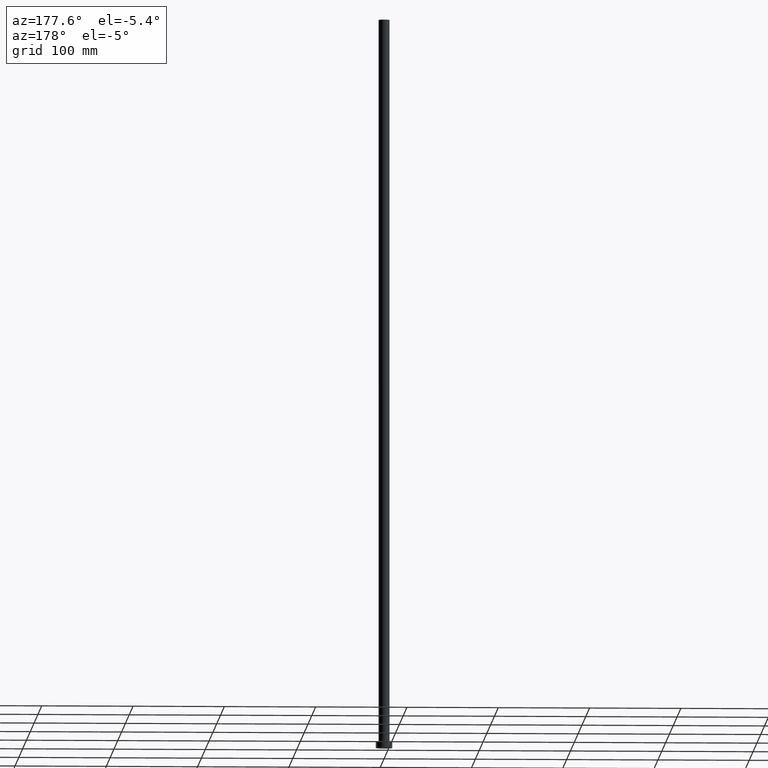
[diagram: clean part render]
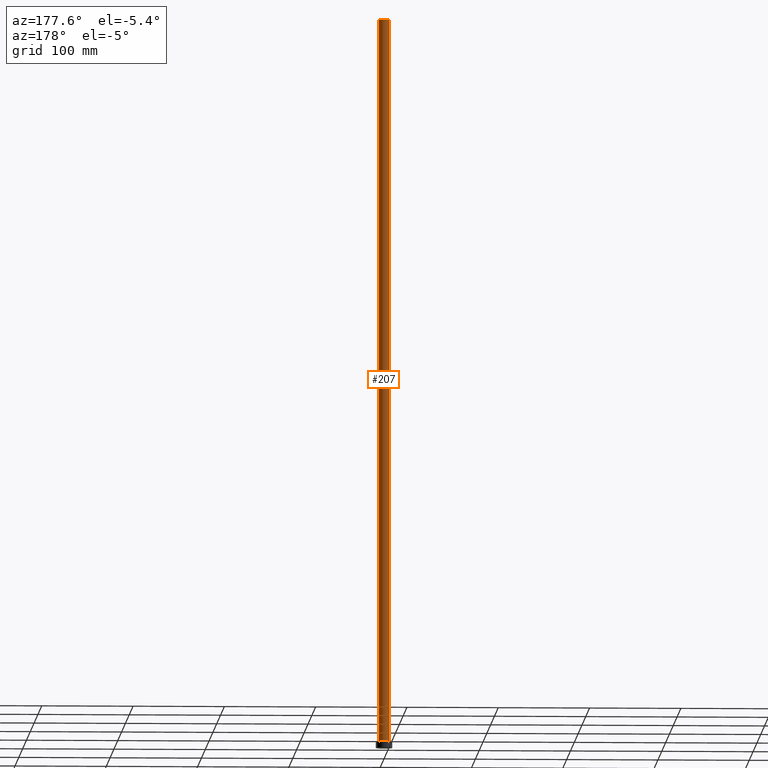
[diagram: same view with one face highlighted and labeled with its STEP entity id]
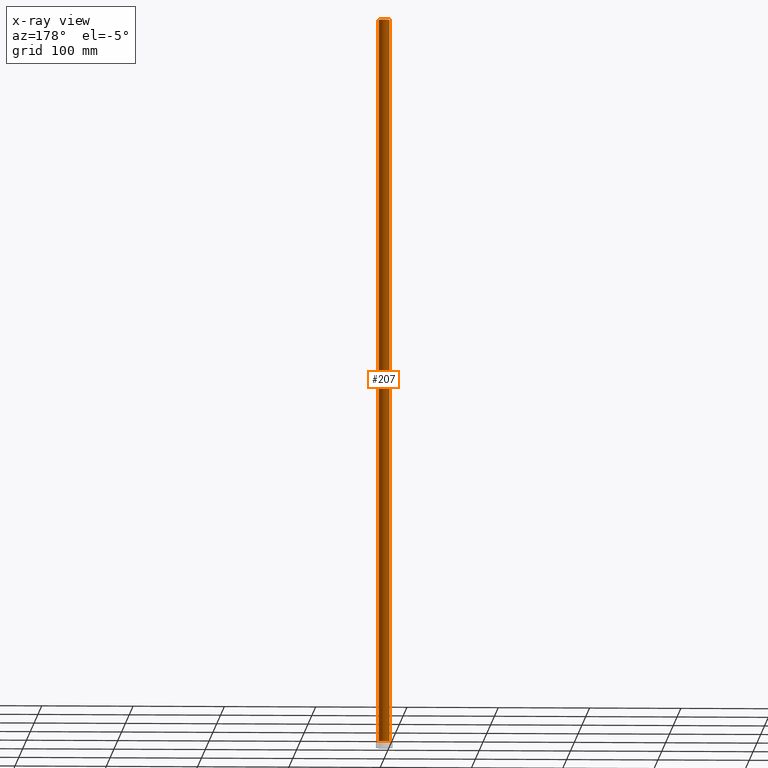
[diagram: x-ray of the same camera — body ghosted, the highlighted face saturated]
A machine part, auxiliary view. The second image highlights one B-rep face of the part: STEP entity #207.
The next image is the same camera in x-ray: the body ghosted, the highlighted face saturated — about 0% of this face is hidden behind the body in this view.
In plain terms, the highlighted cylindrical surface (edge-blend (fillet) strip) has radius 6 mm, axis along (-0, -0, -1).
Its self-contained STEP definition (entity closure, byte-faithful):
#6 = VECTOR ( 'NONE', #247, 1000.000000000000000 ) ;
#14 = DIRECTION ( 'NONE',  ( 0.000000000000000000, 0.000000000000000000, 1.000000000000000000 ) ) ;
#27 = EDGE_CURVE ( 'NONE', #47, #83, #177, .T. ) ;
#33 = CARTESIAN_POINT ( 'NONE',  ( 6.000000000000000888, 7.347880794884120722E-16, 7.000000000000000000 ) ) ;
#34 = EDGE_CURVE ( 'NONE', #67, #203, #144, .T. ) ;
#35 = CARTESIAN_POINT ( 'NONE',  ( -6.000000000000000888, 0.000000000000000000, 800.0000000000000000 ) ) ;
#39 = DIRECTION ( 'NONE',  ( -0.000000000000000000, -0.000000000000000000, -1.000000000000000000 ) ) ;
#40 = CARTESIAN_POINT ( 'NONE',  ( 0.000000000000000000, 0.000000000000000000, 800.0000000000000000 ) ) ;
#46 = AXIS2_PLACEMENT_3D ( 'NONE', #40, #112, #137 ) ;
#47 = VERTEX_POINT ( 'NONE', #33 ) ;
#57 = CARTESIAN_POINT ( 'NONE',  ( 6.000000000000000888, 7.347880794884120722E-16, 800.0000000000000000 ) ) ;
#67 = VERTEX_POINT ( 'NONE', #165 ) ;
#72 = CARTESIAN_POINT ( 'NONE',  ( 0.000000000000000000, 0.000000000000000000, 800.0000000000000000 ) ) ;
#83 = VERTEX_POINT ( 'NONE', #127 ) ;
#85 = ORIENTED_EDGE ( 'NONE', *, *, #201, .T. ) ;
#91 = CARTESIAN_POINT ( 'NONE',  ( -6.000000000000000888, 0.000000000000000000, 800.0000000000000000 ) ) ;
#100 = VECTOR ( 'NONE', #39, 1000.000000000000000 ) ;
#105 = ORIENTED_EDGE ( 'NONE', *, *, #34, .F. ) ;
#108 = AXIS2_PLACEMENT_3D ( 'NONE', #190, #151, #185 ) ;
#112 = DIRECTION ( 'NONE',  ( -0.000000000000000000, -0.000000000000000000, -1.000000000000000000 ) ) ;
#126 = LINE ( 'NONE', #35, #6 ) ;
#127 = CARTESIAN_POINT ( 'NONE',  ( -6.000000000000000888, 0.000000000000000000, 7.000000000000000000 ) ) ;
#130 = EDGE_CURVE ( 'NONE', #203, #83, #126, .T. ) ;
#137 = DIRECTION ( 'NONE',  ( -1.000000000000000000, 0.000000000000000000, 0.000000000000000000 ) ) ;
#143 = EDGE_LOOP ( 'NONE', ( #105, #85, #184, #154 ) ) ;
#144 = CIRCLE ( 'NONE', #251, 6.000000000000000888 ) ;
#151 = DIRECTION ( 'NONE',  ( 0.000000000000000000, 0.000000000000000000, 1.000000000000000000 ) ) ;
#154 = ORIENTED_EDGE ( 'NONE', *, *, #130, .F. ) ;
#165 = CARTESIAN_POINT ( 'NONE',  ( 6.000000000000000888, 7.347880794884120722E-16, 800.0000000000000000 ) ) ;
#171 = FACE_OUTER_BOUND ( 'NONE', #143, .T. ) ;
#177 = CIRCLE ( 'NONE', #108, 6.000000000000000888 ) ;
#184 = ORIENTED_EDGE ( 'NONE', *, *, #27, .T. ) ;
#185 = DIRECTION ( 'NONE',  ( 1.000000000000000000, 0.000000000000000000, 0.000000000000000000 ) ) ;
#190 = CARTESIAN_POINT ( 'NONE',  ( 0.000000000000000000, 0.000000000000000000, 7.000000000000000000 ) ) ;
#201 = EDGE_CURVE ( 'NONE', #67, #47, #210, .T. ) ;
#203 = VERTEX_POINT ( 'NONE', #91 ) ;
#207 = ADVANCED_FACE ( 'NONE', ( #171 ), #249, .T. ) ;
#210 = LINE ( 'NONE', #57, #100 ) ;
#228 = DIRECTION ( 'NONE',  ( 1.000000000000000000, 0.000000000000000000, 0.000000000000000000 ) ) ;
#247 = DIRECTION ( 'NONE',  ( -0.000000000000000000, -0.000000000000000000, -1.000000000000000000 ) ) ;
#249 = CYLINDRICAL_SURFACE ( 'NONE', #46, 6.000000000000000888 ) ;
#251 = AXIS2_PLACEMENT_3D ( 'NONE', #72, #14, #228 ) ;